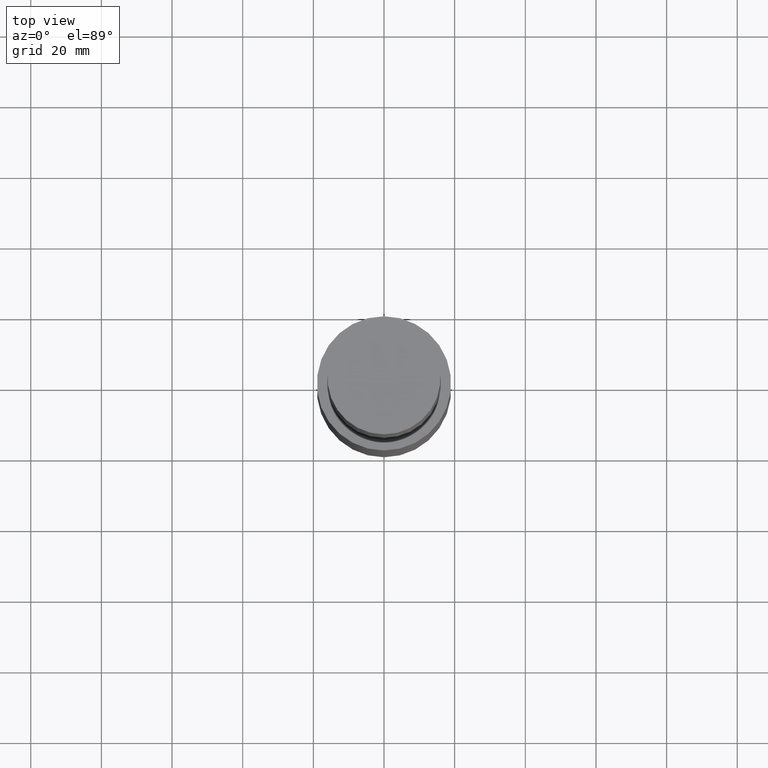
[diagram: clean part render]
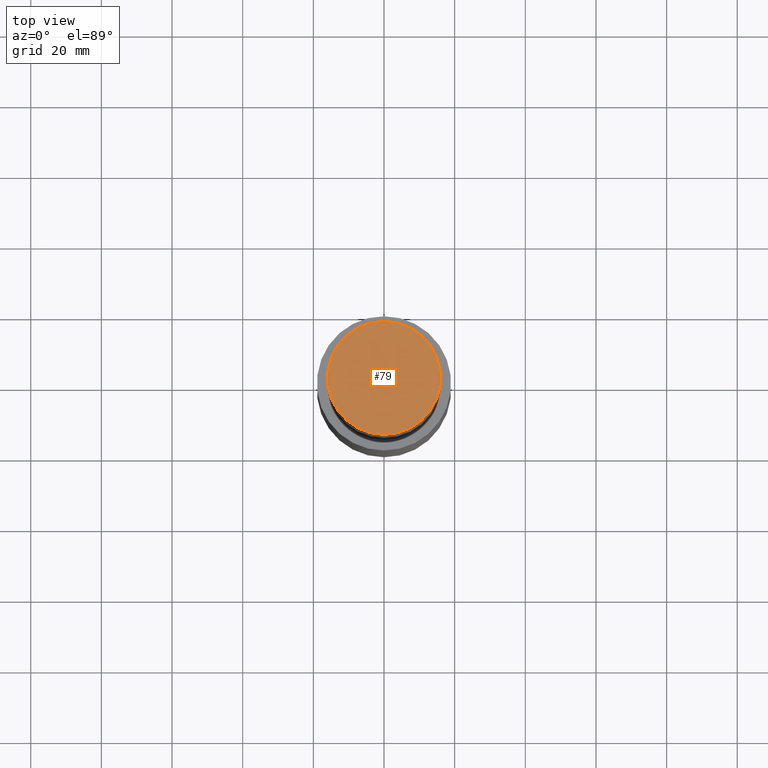
[diagram: same view with one face highlighted and labeled with its STEP entity id]
A machine part, top view. The second image highlights one B-rep face of the part: STEP entity #79.
In plain terms, the highlighted planar face has unit normal (-0, -0, 1).
Its self-contained STEP definition (entity closure, byte-faithful):
#79=ADVANCED_FACE('',(#92),#93,.T.);
#92=FACE_OUTER_BOUND('',#105,.T.);
#93=PLANE('',#106);
#105=EDGE_LOOP('',(#126));
#106=AXIS2_PLACEMENT_3D('',#127,#128,#129);
#126=ORIENTED_EDGE('',*,*,#133,.T.);
#127=CARTESIAN_POINT('',(-1.22464679914734E-014,8.00000000021491,199.999999999997));
#128=DIRECTION('',(-6.12323399573677E-017,-2.36453150135289E-014,1.0));
#129=DIRECTION('',(-1.45268512003822E-030,1.0,2.36453150135289E-014));
#133=EDGE_CURVE('',#140,#140,#141,.T.);
#140=VERTEX_POINT('',#148);
#141=CIRCLE('',#149,16.0000000004298);
#148=CARTESIAN_POINT('',(-1.22464679914734E-014,16.0000000004298,199.999999999998));
#149=AXIS2_PLACEMENT_3D('',#159,#160,#161);
#159=CARTESIAN_POINT('',(-1.22464679914734E-014,3.62587589824125E-015,199.999999999998));
#160=DIRECTION('',(-6.12323399573677E-017,1.81293794912066E-017,1.0));
#161=DIRECTION('',(-3.71704840254733E-033,1.0,-1.81293794912066E-017));